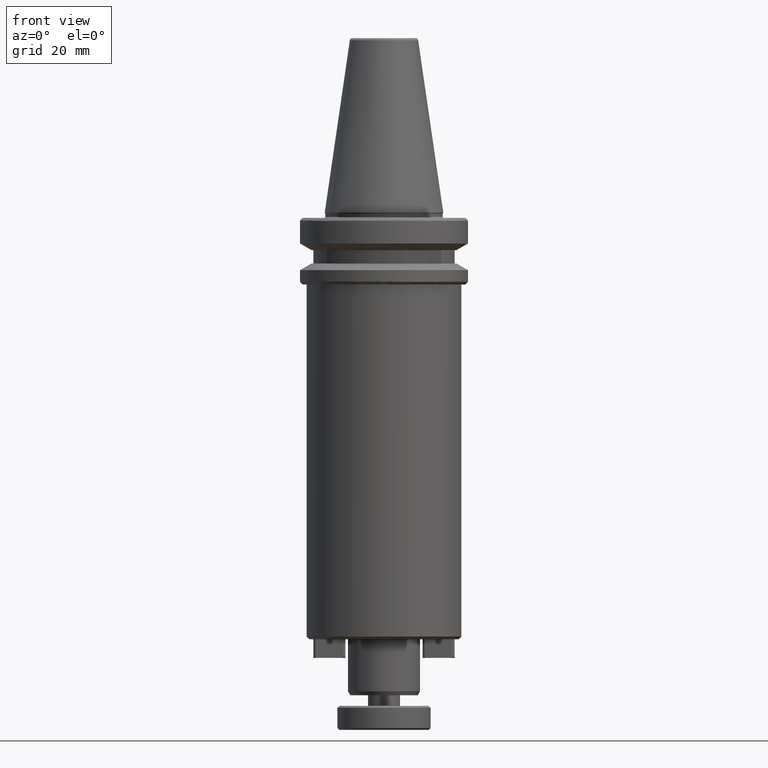
[diagram: clean part render]
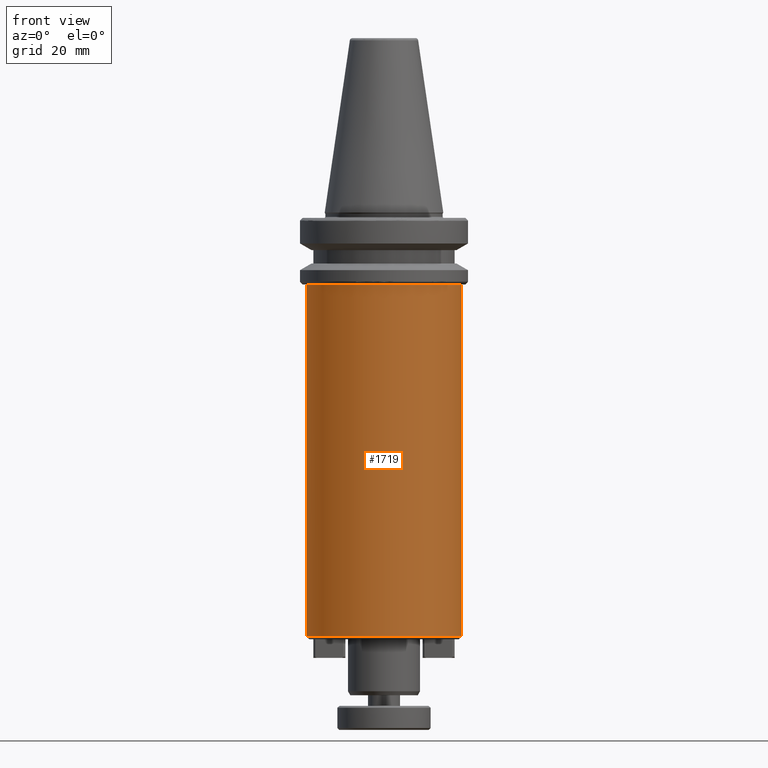
[diagram: same view with one face highlighted and labeled with its STEP entity id]
A machine part, front view. The second image highlights one B-rep face of the part: STEP entity #1719.
In plain terms, the highlighted cylindrical surface (partial cylindrical patch) has radius 29 mm, axis along (0, 0, 1).
Its self-contained STEP definition (entity closure, byte-faithful):
#123 = LINE ( 'NONE', #159, #1369 ) ;
#159 = CARTESIAN_POINT ( 'NONE',  ( 29.00000000000000400, 0.0000000000000000000, 88.34764052968309000 ) ) ;
#329 = CARTESIAN_POINT ( 'NONE',  ( 29.00000000000000400, 0.0000000000000000000, -27.00000000000001100 ) ) ;
#366 = EDGE_LOOP ( 'NONE', ( #3321, #2332, #1178, #1423 ) ) ;
#404 = CIRCLE ( 'NONE', #3024, 29.00000000000000400 ) ;
#413 = AXIS2_PLACEMENT_3D ( 'NONE', #3045, #2888, #2909 ) ;
#507 = VERTEX_POINT ( 'NONE', #1794 ) ;
#534 = VERTEX_POINT ( 'NONE', #1698 ) ;
#646 = CARTESIAN_POINT ( 'NONE',  ( -29.00000000000000400, 3.551475717527324800E-015, 88.34764052968309000 ) ) ;
#649 = DIRECTION ( 'NONE',  ( 0.0000000000000000000, 0.0000000000000000000, 1.000000000000000000 ) ) ;
#900 = DIRECTION ( 'NONE',  ( -0.0000000000000000000, -0.0000000000000000000, -1.000000000000000000 ) ) ;
#908 = EDGE_CURVE ( 'NONE', #507, #534, #3413, .T. ) ;
#1119 = VERTEX_POINT ( 'NONE', #329 ) ;
#1178 = ORIENTED_EDGE ( 'NONE', *, *, #3406, .T. ) ;
#1369 = VECTOR ( 'NONE', #2198, 1000.000000000000000 ) ;
#1389 = EDGE_CURVE ( 'NONE', #1119, #534, #404, .T. ) ;
#1423 = ORIENTED_EDGE ( 'NONE', *, *, #1389, .T. ) ;
#1485 = CARTESIAN_POINT ( 'NONE',  ( 0.0000000000000000000, 0.0000000000000000000, -27.00000000000001100 ) ) ;
#1551 = DIRECTION ( 'NONE',  ( 1.000000000000000000, 0.0000000000000000000, 0.0000000000000000000 ) ) ;
#1633 = VERTEX_POINT ( 'NONE', #3164 ) ;
#1698 = CARTESIAN_POINT ( 'NONE',  ( -29.00000000000000400, 3.551475717527324800E-015, -27.00000000000001100 ) ) ;
#1719 = ADVANCED_FACE ( 'NONE', ( #1877 ), #3145, .T. ) ;
#1794 = CARTESIAN_POINT ( 'NONE',  ( -29.00000000000000700, 3.551475717527325600E-015, -159.0000000000000300 ) ) ;
#1845 = AXIS2_PLACEMENT_3D ( 'NONE', #2462, #2452, #2444 ) ;
#1877 = FACE_OUTER_BOUND ( 'NONE', #366, .T. ) ;
#1929 = EDGE_CURVE ( 'NONE', #507, #1633, #2177, .T. ) ;
#2177 = CIRCLE ( 'NONE', #1845, 29.00000000000000400 ) ;
#2198 = DIRECTION ( 'NONE',  ( 0.0000000000000000000, 0.0000000000000000000, 1.000000000000000000 ) ) ;
#2332 = ORIENTED_EDGE ( 'NONE', *, *, #1929, .T. ) ;
#2444 = DIRECTION ( 'NONE',  ( 1.000000000000000000, 0.0000000000000000000, 0.0000000000000000000 ) ) ;
#2452 = DIRECTION ( 'NONE',  ( 0.0000000000000000000, 0.0000000000000000000, 1.000000000000000000 ) ) ;
#2462 = CARTESIAN_POINT ( 'NONE',  ( 0.0000000000000000000, 0.0000000000000000000, -159.0000000000000300 ) ) ;
#2888 = DIRECTION ( 'NONE',  ( 0.0000000000000000000, 0.0000000000000000000, 1.000000000000000000 ) ) ;
#2909 = DIRECTION ( 'NONE',  ( 1.000000000000000000, 0.0000000000000000000, 0.0000000000000000000 ) ) ;
#3024 = AXIS2_PLACEMENT_3D ( 'NONE', #1485, #900, #1551 ) ;
#3045 = CARTESIAN_POINT ( 'NONE',  ( 0.0000000000000000000, 0.0000000000000000000, 88.34764052968309000 ) ) ;
#3145 = CYLINDRICAL_SURFACE ( 'NONE', #413, 29.00000000000000400 ) ;
#3164 = CARTESIAN_POINT ( 'NONE',  ( 29.00000000000000700, 0.0000000000000000000, -159.0000000000000300 ) ) ;
#3321 = ORIENTED_EDGE ( 'NONE', *, *, #908, .F. ) ;
#3344 = VECTOR ( 'NONE', #649, 1000.000000000000000 ) ;
#3406 = EDGE_CURVE ( 'NONE', #1633, #1119, #123, .T. ) ;
#3413 = LINE ( 'NONE', #646, #3344 ) ;